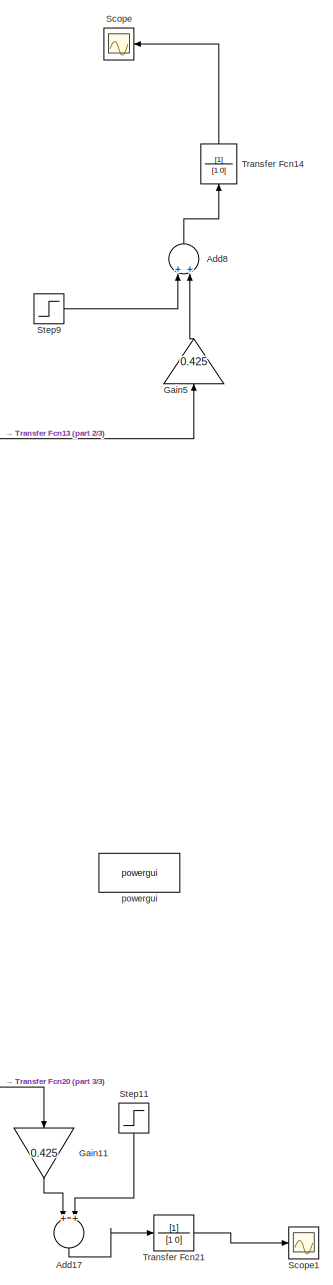
[diagram: root canvas - part 1/3, right side, full height]
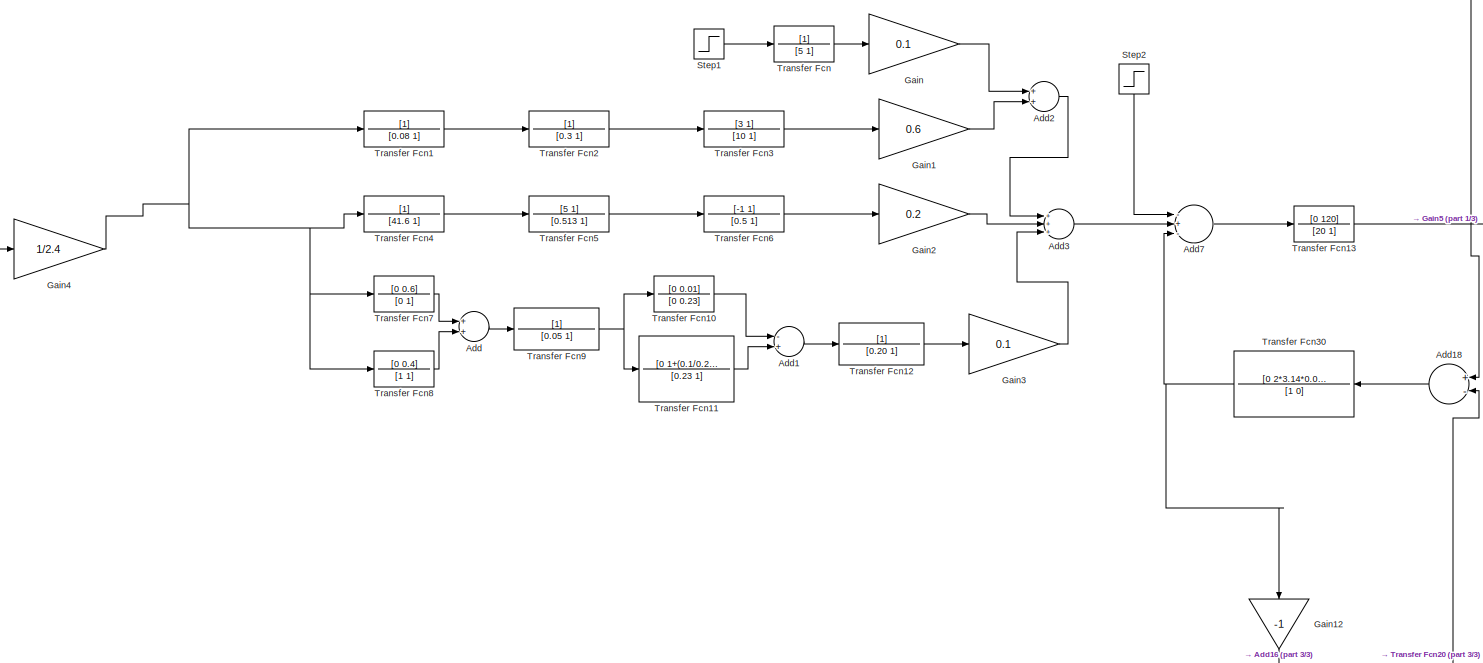
[diagram: root canvas - part 2/3, full width, middle band]
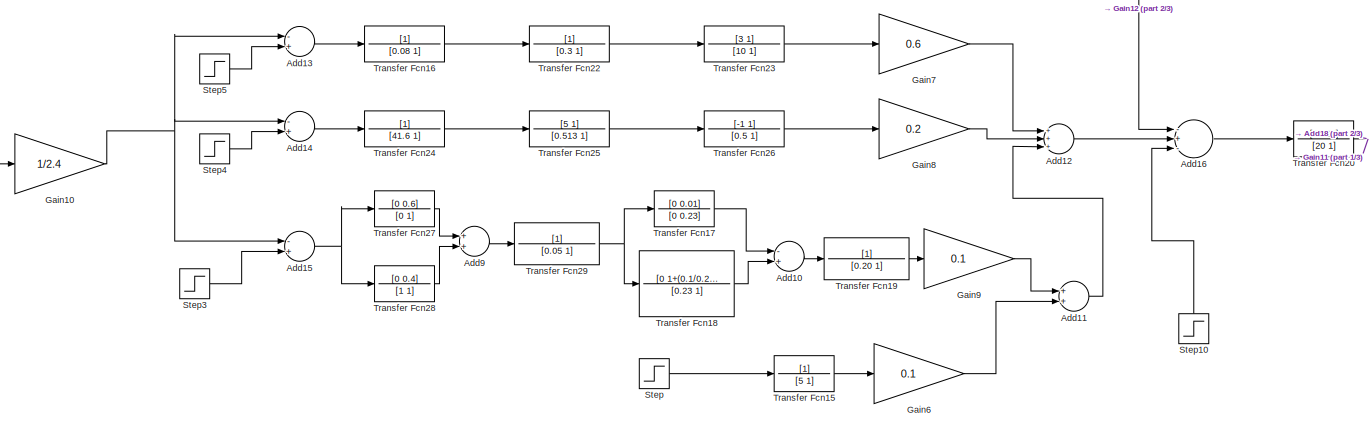
[diagram: root canvas - part 3/3, full width, bottom band]
MODEL slx_fcf2480133f7
KIND model
CONFIG AbsTol = auto
CONFIG EnableMultiTasking = off
CONFIG FixedStep = auto
CONFIG MaxStep = 1e-4
CONFIG MinStep = auto
CONFIG RelTol = 1e-3
CONFIG SampleTimeConstraint = Unconstrained
CONFIG Solver = VariableStepAuto
CONFIG SolverName = VariableStepAuto
CONFIG StartTime = 0.0
CONFIG StopTime = 10
BLOCK [Sum] Add
  InputSameDT = off
  OutDataTypeStr = Inherit: Inherit via internal rule
  Ports = [2, 1]
  SaturateOnIntegerOverflow = off
BLOCK [Sum] Add1
  InputSameDT = off
  Inputs = -+
  OutDataTypeStr = Inherit: Inherit via internal rule
  Ports = [2, 1]
  SaturateOnIntegerOverflow = off
BLOCK [Sum] Add10
  InputSameDT = off
  Inputs = -+
  OutDataTypeStr = Inherit: Inherit via internal rule
  Ports = [2, 1]
  SaturateOnIntegerOverflow = off
BLOCK [Sum] Add11
  InputSameDT = off
  OutDataTypeStr = Inherit: Inherit via internal rule
  Ports = [2, 1]
  SaturateOnIntegerOverflow = off
BLOCK [Sum] Add12
  InputSameDT = off
  Inputs = +++
  OutDataTypeStr = Inherit: Inherit via internal rule
  Ports = [3, 1]
  SaturateOnIntegerOverflow = off
BLOCK [Sum] Add13
  InputSameDT = off
  Inputs = -+
  OutDataTypeStr = Inherit: Inherit via internal rule
  Ports = [2, 1]
  SaturateOnIntegerOverflow = off
BLOCK [Sum] Add14
  InputSameDT = off
  Inputs = -+
  OutDataTypeStr = Inherit: Inherit via internal rule
  Ports = [2, 1]
  SaturateOnIntegerOverflow = off
BLOCK [Sum] Add15
  InputSameDT = off
  Inputs = -+
  OutDataTypeStr = Inherit: Inherit via internal rule
  Ports = [2, 1]
  SaturateOnIntegerOverflow = off
BLOCK [Sum] Add16
  InputSameDT = off
  Inputs = -+-
  OutDataTypeStr = Inherit: Inherit via internal rule
  Ports = [3, 1]
  SaturateOnIntegerOverflow = off
BLOCK [Sum] Add17
  InputSameDT = off
  OutDataTypeStr = Inherit: Inherit via internal rule
  Ports = [2, 1]
  SaturateOnIntegerOverflow = off
BLOCK [Sum] Add18
  InputSameDT = off
  Inputs = +-
  OutDataTypeStr = Inherit: Inherit via internal rule
  Ports = [2, 1]
  SaturateOnIntegerOverflow = off
BLOCK [Sum] Add2
  InputSameDT = off
  OutDataTypeStr = Inherit: Inherit via internal rule
  Ports = [2, 1]
  SaturateOnIntegerOverflow = off
BLOCK [Sum] Add3
  InputSameDT = off
  Inputs = +++
  OutDataTypeStr = Inherit: Inherit via internal rule
  Ports = [3, 1]
  SaturateOnIntegerOverflow = off
BLOCK [Sum] Add7
  InputSameDT = off
  Inputs = -+-
  OutDataTypeStr = Inherit: Inherit via internal rule
  Ports = [3, 1]
  SaturateOnIntegerOverflow = off
BLOCK [Sum] Add8
  InputSameDT = off
  OutDataTypeStr = Inherit: Inherit via internal rule
  Ports = [2, 1]
  SaturateOnIntegerOverflow = off
BLOCK [Sum] Add9
  InputSameDT = off
  OutDataTypeStr = Inherit: Inherit via internal rule
  Ports = [2, 1]
  SaturateOnIntegerOverflow = off
BLOCK [Gain] Gain
  Gain = 0.1
  OutDataTypeStr = Inherit: Inherit via internal rule
  ParamDataTypeStr = Inherit: Inherit via internal rule
  SaturateOnIntegerOverflow = off
BLOCK [Gain] Gain1
  Gain = 0.6
  OutDataTypeStr = Inherit: Inherit via internal rule
  ParamDataTypeStr = Inherit: Inherit via internal rule
  SaturateOnIntegerOverflow = off
BLOCK [Gain] Gain10
  Gain = 1/2.4
  OutDataTypeStr = Inherit: Inherit via internal rule
  ParamDataTypeStr = Inherit: Inherit via internal rule
  SaturateOnIntegerOverflow = off
BLOCK [Gain] Gain11
  Gain = 0.425
  OutDataTypeStr = Inherit: Inherit via internal rule
  ParamDataTypeStr = Inherit: Inherit via internal rule
  SaturateOnIntegerOverflow = off
BLOCK [Gain] Gain12
  Gain = -1
  OutDataTypeStr = Inherit: Inherit via internal rule
  ParamDataTypeStr = Inherit: Inherit via internal rule
  SaturateOnIntegerOverflow = off
BLOCK [Gain] Gain2
  Gain = 0.2
  OutDataTypeStr = Inherit: Inherit via internal rule
  ParamDataTypeStr = Inherit: Inherit via internal rule
  SaturateOnIntegerOverflow = off
BLOCK [Gain] Gain3
  Gain = 0.1
  OutDataTypeStr = Inherit: Inherit via internal rule
  ParamDataTypeStr = Inherit: Inherit via internal rule
  SaturateOnIntegerOverflow = off
BLOCK [Gain] Gain4
  Gain = 1/2.4
  OutDataTypeStr = Inherit: Inherit via internal rule
  ParamDataTypeStr = Inherit: Inherit via internal rule
  SaturateOnIntegerOverflow = off
BLOCK [Gain] Gain5
  Gain = 0.425
  OutDataTypeStr = Inherit: Inherit via internal rule
  ParamDataTypeStr = Inherit: Inherit via internal rule
  SaturateOnIntegerOverflow = off
BLOCK [Gain] Gain6
  Gain = 0.1
  OutDataTypeStr = Inherit: Inherit via internal rule
  ParamDataTypeStr = Inherit: Inherit via internal rule
  SaturateOnIntegerOverflow = off
BLOCK [Gain] Gain7
  Gain = 0.6
  OutDataTypeStr = Inherit: Inherit via internal rule
  ParamDataTypeStr = Inherit: Inherit via internal rule
  SaturateOnIntegerOverflow = off
BLOCK [Gain] Gain8
  Gain = 0.2
  OutDataTypeStr = Inherit: Inherit via internal rule
  ParamDataTypeStr = Inherit: Inherit via internal rule
  SaturateOnIntegerOverflow = off
BLOCK [Gain] Gain9
  Gain = 0.1
  OutDataTypeStr = Inherit: Inherit via internal rule
  ParamDataTypeStr = Inherit: Inherit via internal rule
  SaturateOnIntegerOverflow = off
BLOCK [Scope] Scope
  NumInputPorts = 1
  Ports = [1]
  ScopeSpecificationString = Simulink.scopes.TimeScopeBlockCfg('CurrentConfiguration', extmgr.ConfigurationSet(extmgr.Configuration('Core','General UI',true),extmgr.Configuration('Core','Source UI',true),extmgr.Configuration('Sources','WiredSimulink',true),extmgr.Configuration('Visuals','Time Domain',true,'SerializedDisplays',{struct('MinYLimReal','-48.43075','MaxYLimReal','435.87675','YLabelReal','','MinYLimMag','0.00000','M...<+1344ch>
BLOCK [Scope] Scope1
  NumInputPorts = 1
  Ports = [1]
  ScopeSpecificationString = Simulink.scopes.TimeScopeBlockCfg('CurrentConfiguration', extmgr.ConfigurationSet(extmgr.Configuration('Core','General UI',true),extmgr.Configuration('Core','Source UI',true),extmgr.Configuration('Sources','WiredSimulink',true,'DataLoggingVariableName','ScopeData1'),extmgr.Configuration('Visuals','Time Domain',true,'SerializedDisplays',{struct('MinYLimReal','-43.3986','MaxYLimReal','390.58739','YL...<+1410ch>
BLOCK [Step] Step
  After = 0.01
  SampleTime = 0.001
  Time = 0.0001
BLOCK [Step] Step1
  After = 0.01
  SampleTime = 0.001
  Time = 0.0001
BLOCK [Step] Step10
  After = 0.001
  SampleTime = 0.001
  Time = 0.0001
BLOCK [Step] Step11
  After = 10
  SampleTime = 0.001
  Time = 0.0001
BLOCK [Step] Step2
  After = 0.01
  SampleTime = 0.001
  Time = 0.0001
BLOCK [Step] Step3
  After = 10
  SampleTime = 0.001
  Time = 0.0001
BLOCK [Step] Step4
  After = 10
  SampleTime = 0.001
  Time = 0.0001
BLOCK [Step] Step5
  After = 10
  SampleTime = 0.001
  Time = 0.0001
BLOCK [Step] Step9
  After = 10
  SampleTime = 0.001
  Time = 0.0001
BLOCK [TransferFcn] Transfer Fcn
  Denominator = [5 1]
BLOCK [TransferFcn] Transfer Fcn1
  Denominator = [0.08 1]
BLOCK [TransferFcn] Transfer Fcn10
  Denominator = [0 0.23]
  Numerator = [0 0.01]
BLOCK [TransferFcn] Transfer Fcn11
  Denominator = [0.23 1]
  Numerator = [0 1+(0.1/0.23)]
BLOCK [TransferFcn] Transfer Fcn12
  Denominator = [0.20 1]
BLOCK [TransferFcn] Transfer Fcn13
  Denominator = [20 1]
  Numerator = [0 120]
BLOCK [TransferFcn] Transfer Fcn14
  Denominator = [1 0]
BLOCK [TransferFcn] Transfer Fcn15
  Denominator = [5 1]
BLOCK [TransferFcn] Transfer Fcn16
  Denominator = [0.08 1]
BLOCK [TransferFcn] Transfer Fcn17
  Denominator = [0 0.23]
  Numerator = [0 0.01]
BLOCK [TransferFcn] Transfer Fcn18
  Denominator = [0.23 1]
  Numerator = [0 1+(0.1/0.23)]
BLOCK [TransferFcn] Transfer Fcn19
  Denominator = [0.20 1]
BLOCK [TransferFcn] Transfer Fcn2
  Denominator = [0.3 1]
BLOCK [TransferFcn] Transfer Fcn20
  Denominator = [20 1]
  Numerator = [0 120]
BLOCK [TransferFcn] Transfer Fcn21
  Denominator = [1 0]
BLOCK [TransferFcn] Transfer Fcn22
  Denominator = [0.3 1]
BLOCK [TransferFcn] Transfer Fcn23
  Denominator = [10 1]
  Numerator = [3 1]
BLOCK [TransferFcn] Transfer Fcn24
  Denominator = [41.6 1]
BLOCK [TransferFcn] Transfer Fcn25
  Denominator = [0.513 1]
  Numerator = [5 1]
BLOCK [TransferFcn] Transfer Fcn26
  Denominator = [0.5 1]
  Numerator = [-1 1]
BLOCK [TransferFcn] Transfer Fcn27
  Denominator = [0 1]
  Numerator = [0 0.6]
BLOCK [TransferFcn] Transfer Fcn28
  Denominator = [1 1]
  Numerator = [0 0.4]
BLOCK [TransferFcn] Transfer Fcn29
  Denominator = [0.05 1]
BLOCK [TransferFcn] Transfer Fcn3
  Denominator = [10 1]
  Numerator = [3 1]
BLOCK [TransferFcn] Transfer Fcn30
  Denominator = [1 0]
  Numerator = [0 2*3.14*0.0433]
BLOCK [TransferFcn] Transfer Fcn4
  Denominator = [41.6 1]
BLOCK [TransferFcn] Transfer Fcn5
  Denominator = [0.513 1]
  Numerator = [5 1]
BLOCK [TransferFcn] Transfer Fcn6
  Denominator = [0.5 1]
  Numerator = [-1 1]
BLOCK [TransferFcn] Transfer Fcn7
  Denominator = [0 1]
  Numerator = [0 0.6]
BLOCK [TransferFcn] Transfer Fcn8
  Denominator = [1 1]
  Numerator = [0 0.4]
BLOCK [TransferFcn] Transfer Fcn9
  Denominator = [0.05 1]
BLOCK [Reference] powergui  REF=powerlib/powergui
  Ports = []
  Priority = 1
  SourceBlock = powerlib/powergui
  SourceProductBaseCode = PS
  SourceProductName = Simscape Power Systems
  SourceType = PSB option menu block
LINE Add10:1 -> Transfer Fcn19:1
LINE Add11:1 -> Add12:3
LINE Add12:1 -> Add16:2
LINE Add13:1 -> Transfer Fcn16:1
LINE Add14:1 -> Transfer Fcn24:1
NET Add15:1 -> Transfer Fcn27:1, Transfer Fcn28:1
LINE Add16:1 -> Transfer Fcn20:1
LINE Add17:1 -> Transfer Fcn21:1
LINE Add18:1 -> Transfer Fcn30:1
LINE Add1:1 -> Transfer Fcn12:1
LINE Add2:1 -> Add3:1
LINE Add3:1 -> Add7:2
LINE Add7:1 -> Transfer Fcn13:1
LINE Add8:1 -> Transfer Fcn14:1
LINE Add9:1 -> Transfer Fcn29:1
LINE Add:1 -> Transfer Fcn9:1
NET Gain10:1 -> Add13:1, Add14:1, Add15:1
LINE Gain11:1 -> Add17:1
LINE Gain12:1 -> Add16:1
LINE Gain1:1 -> Add2:2
LINE Gain2:1 -> Add3:2
LINE Gain3:1 -> Add3:3
NET Gain4:1 -> Transfer Fcn1:1, Transfer Fcn4:1, Transfer Fcn7:1, Transfer Fcn8:1
LINE Gain5:1 -> Add8:2
LINE Gain6:1 -> Add11:2
LINE Gain7:1 -> Add12:1
LINE Gain8:1 -> Add12:2
LINE Gain9:1 -> Add11:1
LINE Gain:1 -> Add2:1
LINE Step10:1 -> Add16:3
LINE Step11:1 -> Add17:2
LINE Step1:1 -> Transfer Fcn:1
LINE Step2:1 -> Add7:1
LINE Step3:1 -> Add15:2
LINE Step4:1 -> Add14:2
LINE Step5:1 -> Add13:2
LINE Step9:1 -> Add8:1
LINE Step:1 -> Transfer Fcn15:1
LINE Transfer Fcn10:1 -> Add1:1
LINE Transfer Fcn11:1 -> Add1:2
LINE Transfer Fcn12:1 -> Gain3:1
NET Transfer Fcn13:1 -> Add18:1, Gain4:1, Gain5:1
LINE Transfer Fcn14:1 -> Scope:1
LINE Transfer Fcn15:1 -> Gain6:1
LINE Transfer Fcn16:1 -> Transfer Fcn22:1
LINE Transfer Fcn17:1 -> Add10:1
LINE Transfer Fcn18:1 -> Add10:2
LINE Transfer Fcn19:1 -> Gain9:1
LINE Transfer Fcn1:1 -> Transfer Fcn2:1
NET Transfer Fcn20:1 -> Add18:2, Gain10:1, Gain11:1
LINE Transfer Fcn21:1 -> Scope1:1
LINE Transfer Fcn22:1 -> Transfer Fcn23:1
LINE Transfer Fcn23:1 -> Gain7:1
LINE Transfer Fcn24:1 -> Transfer Fcn25:1
LINE Transfer Fcn25:1 -> Transfer Fcn26:1
LINE Transfer Fcn26:1 -> Gain8:1
LINE Transfer Fcn27:1 -> Add9:1
LINE Transfer Fcn28:1 -> Add9:2
NET Transfer Fcn29:1 -> Transfer Fcn17:1, Transfer Fcn18:1
LINE Transfer Fcn2:1 -> Transfer Fcn3:1
NET Transfer Fcn30:1 -> Add7:3, Gain12:1
LINE Transfer Fcn3:1 -> Gain1:1
LINE Transfer Fcn4:1 -> Transfer Fcn5:1
LINE Transfer Fcn5:1 -> Transfer Fcn6:1
LINE Transfer Fcn6:1 -> Gain2:1
LINE Transfer Fcn7:1 -> Add:1
LINE Transfer Fcn8:1 -> Add:2
NET Transfer Fcn9:1 -> Transfer Fcn10:1, Transfer Fcn11:1
LINE Transfer Fcn:1 -> Gain:1
note: NET lines group one-source signal fan-out (src -> all destinations, sorted); 1:1 wires keep LINE
